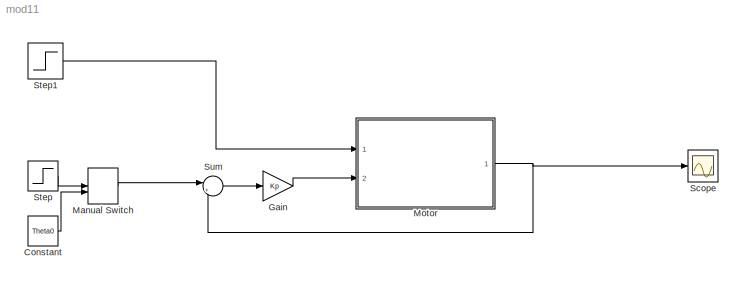
MODEL mod11
KIND model
BLOCK [Constant] Constant
  SID = 27
  Value = Theta0
BLOCK [Gain] Gain
  Gain = Kp
  OutDataTypeStr = Inherit: Inherit via internal rule
  ParamDataTypeStr = Inherit: Inherit via internal rule
  SID = 18
  SaturateOnIntegerOverflow = off
BLOCK [ManualSwitch] Manual Switch
  SID = 26
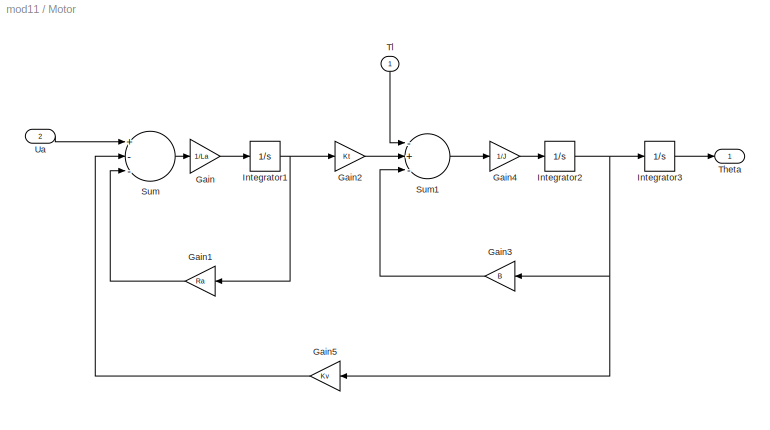
BLOCK [SubSystem] Motor
  Ports = [2, 1]
  RequestExecContextInheritance = off
  SID = 1
  Variant = off
BLOCK [Gain] Motor/Gain
  Gain = 1/La
  SID = 4
BLOCK [Gain] Motor/Gain1
  Gain = Ra
  SID = 5
BLOCK [Gain] Motor/Gain2
  Gain = Kt
  SID = 6
BLOCK [Gain] Motor/Gain3
  Gain = B
  SID = 7
BLOCK [Gain] Motor/Gain4
  Gain = 1/J
  SID = 8
BLOCK [Gain] Motor/Gain5
  Gain = Kv
  SID = 9
BLOCK [Integrator] Motor/Integrator1
  Ports = [1, 1]
  SID = 10
BLOCK [Integrator] Motor/Integrator2
  InitialCondition = 200
  Ports = [1, 1]
  SID = 11
BLOCK [Integrator] Motor/Integrator3
  Ports = [1, 1]
  SID = 12
BLOCK [Sum] Motor/Sum
  Inputs = +--
  Ports = [3, 1]
  SID = 13
BLOCK [Sum] Motor/Sum1
  Inputs = -+-
  Ports = [3, 1]
  SID = 14
BLOCK [Outport] Motor/Theta
  IconDisplay = Port number
  InitialOutput = 0
  SID = 15
BLOCK [Inport] Motor/Tl
  IconDisplay = Port number
  SID = 2
BLOCK [Inport] Motor/Ua
  IconDisplay = Port number
  Port = 2
  SID = 3
BLOCK [Scope] Scope
  NumInputPorts = 1
  Ports = [1]
  SID = 21
  ScopeSpecificationString = Simulink.scopes.TimeScopeBlockCfg('CurrentConfiguration', extmgr.ConfigurationSet(extmgr.Configuration('Core','General UI',true),extmgr.Configuration('Core','Source UI',true),extmgr.Configuration('Sources','WiredSimulink',true),extmgr.Configuration('Visuals','Time Domain',true,'SerializedDisplays',{struct('MinYLimReal','-0.77906','MaxYLimReal','7.0115','YLabelReal','','MinYLimMag','0.00000','MaxYL...<+1350ch>
BLOCK [Step] Step
  SID = 24
  SampleTime = 0
BLOCK [Step] Step1
  After = TL
  SID = 23
  SampleTime = 0
BLOCK [Sum] Sum
  IconShape = round
  InputSameDT = off
  Inputs = |+-
  OutDataTypeStr = Inherit: Inherit via internal rule
  Ports = [2, 1]
  SID = 17
  SaturateOnIntegerOverflow = off
LINE Constant:1 -> Manual Switch:2
LINE Gain:1 -> Motor:2
LINE Manual Switch:1 -> Sum:1
LINE Motor/Gain1:1 -> Motor/Sum:3
LINE Motor/Gain2:1 -> Motor/Sum1:2
LINE Motor/Gain3:1 -> Motor/Sum1:3
LINE Motor/Gain4:1 -> Motor/Integrator2:1
LINE Motor/Gain5:1 -> Motor/Sum:2
LINE Motor/Gain:1 -> Motor/Integrator1:1
NET Motor/Integrator1:1 -> Motor/Gain1:1, Motor/Gain2:1
NET Motor/Integrator2:1 -> Motor/Gain3:1, Motor/Gain5:1, Motor/Integrator3:1
LINE Motor/Integrator3:1 -> Motor/Theta:1
LINE Motor/Sum1:1 -> Motor/Gain4:1
LINE Motor/Sum:1 -> Motor/Gain:1
LINE Motor/Tl:1 -> Motor/Sum1:1
LINE Motor/Ua:1 -> Motor/Sum:1
NET Motor:1 -> Scope:1, Sum:2
LINE Step1:1 -> Motor:1
LINE Step:1 -> Manual Switch:1
LINE Sum:1 -> Gain:1
note: NET lines group one-source signal fan-out (src -> all destinations, sorted); 1:1 wires keep LINE
